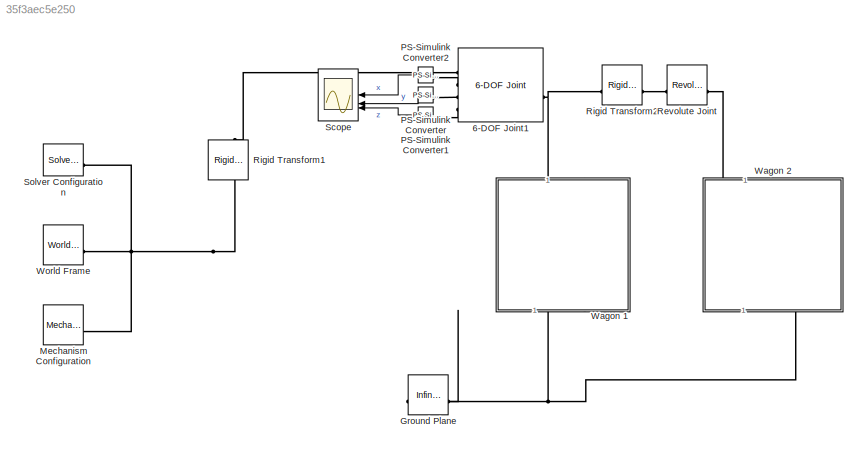
MODEL slx_35f3aec5e250
KIND model
CONFIG AbsTol = 1e-3
CONFIG EnableMultiTasking = on
CONFIG FixedStep = auto
CONFIG MaxStep = auto
CONFIG MinStep = auto
CONFIG RelTol = 1e-3
CONFIG SampleTimeConstraint = Unconstrained
CONFIG SolverName = ode23
CONFIG StartTime = 0.0
CONFIG StopTime = 10.0
BLOCK [Reference] 6-DOF Joint1  REF=sm_lib/Joints/6-DOF Joint
  NameLocation = top
  SourceBlock = sm_lib/Joints/6-DOF Joint
  SourceType = 6-DOF Joint
BLOCK [Reference] Ground Plane  REF=sm_lib/Curves and Surfaces/Infinite Plane
  SourceBlock = sm_lib/Curves and Surfaces/Infinite Plane
  SourceType = Infinite Plane
BLOCK [Reference] Mechanism Configuration  REF=sm_lib/Utilities/Mechanism
Configuration
  SourceBlock = sm_lib/Utilities/Mechanism\nConfiguration
  SourceType = Mechanism\nConfiguration
BLOCK [Reference] PS-Simulink Converter  REF=nesl_utility/PS-Simulink
Converter
  NameLocation = top
  SourceBlock = nesl_utility/PS-Simulink\nConverter
  SourceType = PS-Simulink\nConverter
BLOCK [Reference] PS-Simulink Converter1  REF=nesl_utility/PS-Simulink
Converter
  NameLocation = top
  SourceBlock = nesl_utility/PS-Simulink\nConverter
  SourceType = PS-Simulink\nConverter
BLOCK [Reference] PS-Simulink Converter2  REF=nesl_utility/PS-Simulink
Converter
  NameLocation = top
  SourceBlock = nesl_utility/PS-Simulink\nConverter
  SourceType = PS-Simulink\nConverter
BLOCK [Reference] Revolute Joint  REF=sm_lib/Joints/Revolute Joint
  SourceBlock = sm_lib/Joints/Revolute Joint
  SourceType = Revolute Joint
BLOCK [Reference] Rigid Transform1  REF=sm_lib/Frames and
Transforms/Rigid
Transform
  NameLocation = left
  SourceBlock = sm_lib/Frames and\nTransforms/Rigid\nTransform
  SourceType = Rigid\nTransform
BLOCK [Reference] Rigid Transform2  REF=sm_lib/Frames and
Transforms/Rigid
Transform
  NameLocation = top
  SourceBlock = sm_lib/Frames and\nTransforms/Rigid\nTransform
  SourceType = Rigid\nTransform
BLOCK [Scope] Scope
  Floating = off
  NameLocation = top
  NumInputPorts = 3
  ScopeSpecificationString = Simulink.scopes.TimeScopeBlockCfg('CurrentConfiguration', extmgr.ConfigurationSet(extmgr.Configuration('Core','General UI',true),extmgr.Configuration('Core','Source UI',true),extmgr.Configuration('Sources','WiredSimulink',true),extmgr.Configuration('Visuals','Time Domain',true,'SerializedDisplays',{struct('MinYLimReal','-0.03561','MaxYLimReal','0.30939','YLabelReal','','MinYLimMag','0.00000','MaxY...<+2649ch>
BLOCK [Reference] Solver Configuration  REF=nesl_utility/Solver
Configuration
  SourceBlock = nesl_utility/Solver\nConfiguration
  SourceType = Solver\nConfiguration
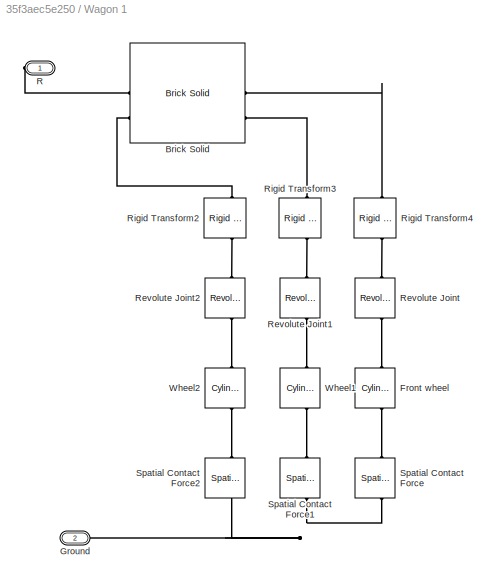
BLOCK [SubSystem] Wagon 1
  NameLocation = right
BLOCK [Reference] Wagon 1/Brick Solid  REF=sm_lib/Body Elements/Brick Solid
  NameLocation = right
  SourceBlock = sm_lib/Body Elements/Brick Solid
  SourceType = Brick Solid
BLOCK [Reference] Wagon 1/Front wheel  REF=sm_lib/Body Elements/Cylindrical Solid
  NameLocation = right
  SourceBlock = sm_lib/Body Elements/Cylindrical Solid
  SourceType = Cylindrical Solid
BLOCK [PMIOPort] Wagon 1/Ground
  Port = 2
  Side = Left
BLOCK [PMIOPort] Wagon 1/R
  Side = Right
BLOCK [Reference] Wagon 1/Revolute Joint  REF=sm_lib/Joints/Revolute Joint
  NameLocation = left
  SourceBlock = sm_lib/Joints/Revolute Joint
  SourceType = Revolute Joint
BLOCK [Reference] Wagon 1/Revolute Joint1  REF=sm_lib/Joints/Revolute Joint
  NameLocation = left
  SourceBlock = sm_lib/Joints/Revolute Joint
  SourceType = Revolute Joint
BLOCK [Reference] Wagon 1/Revolute Joint2  REF=sm_lib/Joints/Revolute Joint
  NameLocation = left
  SourceBlock = sm_lib/Joints/Revolute Joint
  SourceType = Revolute Joint
BLOCK [Reference] Wagon 1/Rigid Transform2  REF=sm_lib/Frames and
Transforms/Rigid
Transform
  NameLocation = right
  SourceBlock = sm_lib/Frames and\nTransforms/Rigid\nTransform
  SourceType = Rigid\nTransform
BLOCK [Reference] Wagon 1/Rigid Transform3  REF=sm_lib/Frames and
Transforms/Rigid
Transform
  NameLocation = right
  SourceBlock = sm_lib/Frames and\nTransforms/Rigid\nTransform
  SourceType = Rigid\nTransform
BLOCK [Reference] Wagon 1/Rigid Transform4  REF=sm_lib/Frames and
Transforms/Rigid
Transform
  NameLocation = right
  SourceBlock = sm_lib/Frames and\nTransforms/Rigid\nTransform
  SourceType = Rigid\nTransform
BLOCK [Reference] Wagon 1/Spatial Contact Force  REF=sm_lib/Forces and
Torques/Spatial
Contact Force
  NameLocation = right
  SourceBlock = sm_lib/Forces and\nTorques/Spatial\nContact Force
  SourceType = Spatial\nContact Force
BLOCK [Reference] Wagon 1/Spatial Contact Force1  REF=sm_lib/Forces and
Torques/Spatial
Contact Force
  NameLocation = right
  SourceBlock = sm_lib/Forces and\nTorques/Spatial\nContact Force
  SourceType = Spatial\nContact Force
BLOCK [Reference] Wagon 1/Spatial Contact Force2  REF=sm_lib/Forces and
Torques/Spatial
Contact Force
  NameLocation = right
  SourceBlock = sm_lib/Forces and\nTorques/Spatial\nContact Force
  SourceType = Spatial\nContact Force
BLOCK [Reference] Wagon 1/Wheel1  REF=sm_lib/Body Elements/Cylindrical Solid
  NameLocation = right
  SourceBlock = sm_lib/Body Elements/Cylindrical Solid
  SourceType = Cylindrical Solid
BLOCK [Reference] Wagon 1/Wheel2  REF=sm_lib/Body Elements/Cylindrical Solid
  NameLocation = right
  SourceBlock = sm_lib/Body Elements/Cylindrical Solid
  SourceType = Cylindrical Solid
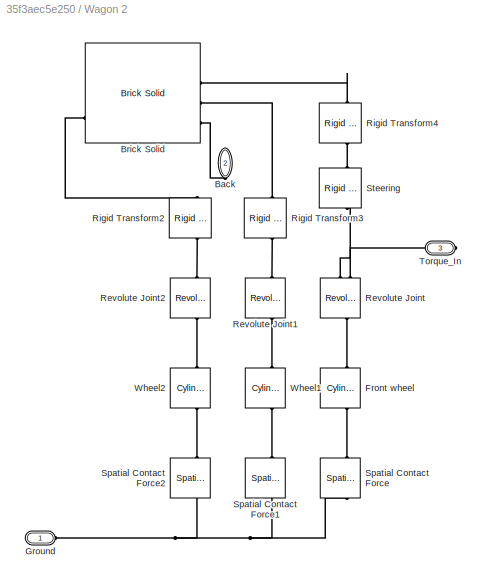
BLOCK [SubSystem] Wagon 2
  NameLocation = right
BLOCK [PMIOPort] Wagon 2/Back
  NameLocation = right
  Port = 2
  Side = Right
BLOCK [Reference] Wagon 2/Brick Solid  REF=sm_lib/Body Elements/Brick Solid
  NameLocation = right
  SourceBlock = sm_lib/Body Elements/Brick Solid
  SourceType = Brick Solid
BLOCK [Reference] Wagon 2/Front wheel  REF=sm_lib/Body Elements/Cylindrical Solid
  NameLocation = right
  SourceBlock = sm_lib/Body Elements/Cylindrical Solid
  SourceType = Cylindrical Solid
BLOCK [PMIOPort] Wagon 2/Ground
  Side = Left
BLOCK [Reference] Wagon 2/Revolute Joint  REF=sm_lib/Joints/Revolute Joint
  NameLocation = left
  SourceBlock = sm_lib/Joints/Revolute Joint
  SourceType = Revolute Joint
BLOCK [Reference] Wagon 2/Revolute Joint1  REF=sm_lib/Joints/Revolute Joint
  NameLocation = left
  SourceBlock = sm_lib/Joints/Revolute Joint
  SourceType = Revolute Joint
BLOCK [Reference] Wagon 2/Revolute Joint2  REF=sm_lib/Joints/Revolute Joint
  NameLocation = left
  SourceBlock = sm_lib/Joints/Revolute Joint
  SourceType = Revolute Joint
BLOCK [Reference] Wagon 2/Rigid Transform2  REF=sm_lib/Frames and
Transforms/Rigid
Transform
  NameLocation = right
  SourceBlock = sm_lib/Frames and\nTransforms/Rigid\nTransform
  SourceType = Rigid\nTransform
BLOCK [Reference] Wagon 2/Rigid Transform3  REF=sm_lib/Frames and
Transforms/Rigid
Transform
  NameLocation = right
  SourceBlock = sm_lib/Frames and\nTransforms/Rigid\nTransform
  SourceType = Rigid\nTransform
BLOCK [Reference] Wagon 2/Rigid Transform4  REF=sm_lib/Frames and
Transforms/Rigid
Transform
  NameLocation = right
  SourceBlock = sm_lib/Frames and\nTransforms/Rigid\nTransform
  SourceType = Rigid\nTransform
BLOCK [Reference] Wagon 2/Spatial Contact Force  REF=sm_lib/Forces and
Torques/Spatial
Contact Force
  NameLocation = right
  SourceBlock = sm_lib/Forces and\nTorques/Spatial\nContact Force
  SourceType = Spatial\nContact Force
BLOCK [Reference] Wagon 2/Spatial Contact Force1  REF=sm_lib/Forces and
Torques/Spatial
Contact Force
  NameLocation = right
  SourceBlock = sm_lib/Forces and\nTorques/Spatial\nContact Force
  SourceType = Spatial\nContact Force
BLOCK [Reference] Wagon 2/Spatial Contact Force2  REF=sm_lib/Forces and
Torques/Spatial
Contact Force
  NameLocation = right
  SourceBlock = sm_lib/Forces and\nTorques/Spatial\nContact Force
  SourceType = Spatial\nContact Force
BLOCK [Reference] Wagon 2/Steering  REF=sm_lib/Frames and
Transforms/Rigid
Transform
  NameLocation = right
  SourceBlock = sm_lib/Frames and\nTransforms/Rigid\nTransform
  SourceType = Rigid\nTransform
BLOCK [PMIOPort] Wagon 2/Torque_In
  NameLocation = top
  Port = 3
  Side = Right
BLOCK [Reference] Wagon 2/Wheel1  REF=sm_lib/Body Elements/Cylindrical Solid
  NameLocation = right
  SourceBlock = sm_lib/Body Elements/Cylindrical Solid
  SourceType = Cylindrical Solid
BLOCK [Reference] Wagon 2/Wheel2  REF=sm_lib/Body Elements/Cylindrical Solid
  NameLocation = right
  SourceBlock = sm_lib/Body Elements/Cylindrical Solid
  SourceType = Cylindrical Solid
BLOCK [Reference] World Frame  REF=sm_lib/Frames and
Transforms/World Frame
  SourceBlock = sm_lib/Frames and\nTransforms/World Frame
  SourceType = World Frame
LINE PS-Simulink Converter1:1 -> Scope:3
LINE PS-Simulink Converter2:1 -> Scope:1
LINE PS-Simulink Converter:1 -> Scope:2
PNET net1: 6-DOF Joint1:LConn1 -- Rigid Transform2:RConn1 -- Wagon 1:RConn1
PLINE 6-DOF Joint1:RConn1 -- Rigid Transform1:LConn1
PLINE 6-DOF Joint1:RConn2 -- PS-Simulink Converter2:LConn1
PLINE 6-DOF Joint1:RConn3 -- PS-Simulink Converter:LConn1
PLINE 6-DOF Joint1:RConn4 -- PS-Simulink Converter1:LConn1
PNET net2: Ground Plane:LConn1 -- Mechanism Configuration:RConn1 -- Rigid Transform1:RConn1 -- Solver Configuration:RConn1 -- World Frame:RConn1
PNET net3: Ground Plane:RConn1 -- Wagon 1:LConn1 -- Wagon 2:LConn1
PLINE Revolute Joint:LConn1 -- Rigid Transform2:LConn1
PLINE Revolute Joint:RConn1 -- Wagon 2:RConn1
PLINE Wagon 1/Brick Solid:LConn1 -- Wagon 1/Rigid Transform4:RConn1
PLINE Wagon 1/Brick Solid:LConn2 -- Wagon 1/Rigid Transform3:RConn1
PLINE Wagon 1/Brick Solid:RConn1 -- Wagon 1/R:RConn1
PLINE Wagon 1/Brick Solid:RConn2 -- Wagon 1/Rigid Transform2:RConn1
PLINE Wagon 1/Front wheel:LConn1 -- Wagon 1/Spatial Contact Force:RConn1
PLINE Wagon 1/Front wheel:RConn1 -- Wagon 1/Revolute Joint:RConn1
PNET net4: Wagon 1/Ground:RConn1 -- Wagon 1/Spatial Contact Force1:LConn1 -- Wagon 1/Spatial Contact Force2:LConn1 -- Wagon 1/Spatial Contact Force:LConn1
PLINE Wagon 1/Revolute Joint1:LConn1 -- Wagon 1/Rigid Transform3:LConn1
PLINE Wagon 1/Revolute Joint1:RConn1 -- Wagon 1/Wheel1:RConn1
PLINE Wagon 1/Revolute Joint2:LConn1 -- Wagon 1/Rigid Transform2:LConn1
PLINE Wagon 1/Revolute Joint2:RConn1 -- Wagon 1/Wheel2:RConn1
PLINE Wagon 1/Revolute Joint:LConn1 -- Wagon 1/Rigid Transform4:LConn1
PLINE Wagon 1/Spatial Contact Force1:RConn1 -- Wagon 1/Wheel1:LConn1
PLINE Wagon 1/Spatial Contact Force2:RConn1 -- Wagon 1/Wheel2:LConn1
PLINE Wagon 2/Back:RConn1 -- Wagon 2/Brick Solid:LConn3
PLINE Wagon 2/Brick Solid:LConn1 -- Wagon 2/Rigid Transform4:RConn1
PLINE Wagon 2/Brick Solid:LConn2 -- Wagon 2/Rigid Transform3:RConn1
PLINE Wagon 2/Brick Solid:RConn2 -- Wagon 2/Rigid Transform2:RConn1
PLINE Wagon 2/Front wheel:LConn1 -- Wagon 2/Spatial Contact Force:RConn1
PLINE Wagon 2/Front wheel:RConn1 -- Wagon 2/Revolute Joint:RConn1
PNET net5: Wagon 2/Ground:RConn1 -- Wagon 2/Spatial Contact Force1:LConn1 -- Wagon 2/Spatial Contact Force2:LConn1 -- Wagon 2/Spatial Contact Force:LConn1
PLINE Wagon 2/Revolute Joint1:LConn1 -- Wagon 2/Rigid Transform3:LConn1
PLINE Wagon 2/Revolute Joint1:RConn1 -- Wagon 2/Wheel1:RConn1
PLINE Wagon 2/Revolute Joint2:LConn1 -- Wagon 2/Rigid Transform2:LConn1
PLINE Wagon 2/Revolute Joint2:RConn1 -- Wagon 2/Wheel2:RConn1
PLINE Wagon 2/Revolute Joint:LConn1 -- Wagon 2/Steering:LConn1
PLINE Wagon 2/Revolute Joint:LConn2 -- Wagon 2/Torque_In:RConn1
PLINE Wagon 2/Rigid Transform4:LConn1 -- Wagon 2/Steering:RConn1
PLINE Wagon 2/Spatial Contact Force1:RConn1 -- Wagon 2/Wheel1:LConn1
PLINE Wagon 2/Spatial Contact Force2:RConn1 -- Wagon 2/Wheel2:LConn1
note: PNET lines group multi-terminal physical nets as a canonical sorted terminal list (undirected conserving connections); 2-terminal nets keep the pairwise PLINE form
